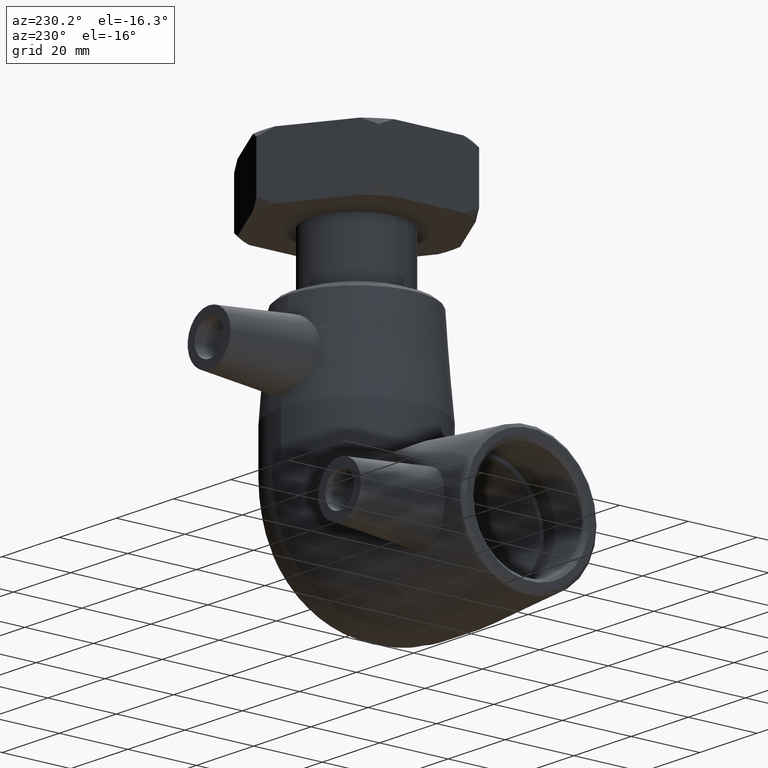
[diagram: clean part render]
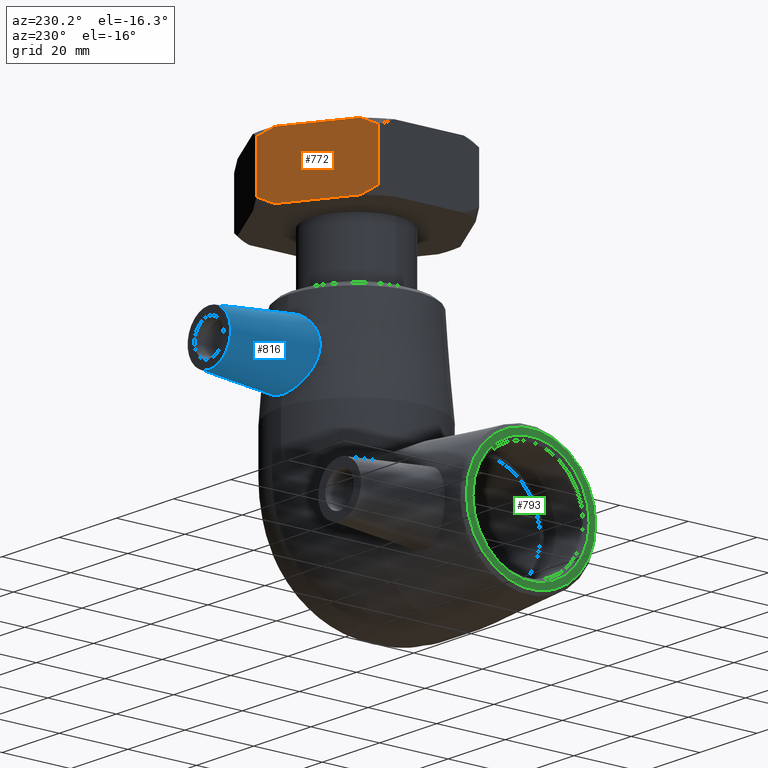
[diagram: same view with three faces highlighted in distinct colors, each labeled with its STEP entity id]
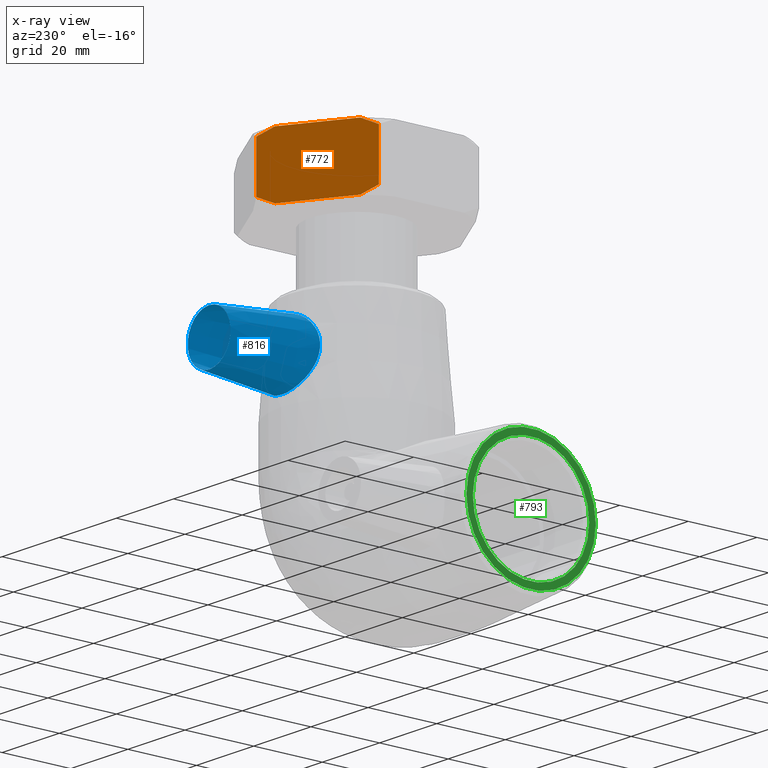
[diagram: x-ray of the same camera — body ghosted, the three highlighted faces saturated]
A machine part, auxiliary view with three faces highlighted in distinct colors.
The next image is the same camera in x-ray (body ghosted, the three faces saturated) — at least one of them is partly hidden behind the body in this view.
Their STEP definitions:

[orange] entity #772 — the highlighted planar face has unit normal (-0.5, 0.866, 0).
#27=LINE('',#1259,#45);
#29=LINE('',#1276,#47);
#30=LINE('',#1282,#48);
#31=LINE('',#1290,#49);
#45=VECTOR('',#972,14.1048);
#47=VECTOR('',#976,14.1048);
#48=VECTOR('',#977,20.3335409567542);
#49=VECTOR('',#978,20.3335409567542);
#67=(
BOUNDED_CURVE()
B_SPLINE_CURVE(2,(#1272,#1273,#1274),.UNSPECIFIED.,.F.,.F.)
B_SPLINE_CURVE_WITH_KNOTS((3,3),(0.,0.48503105520613),.UNSPECIFIED.)
CURVE()
GEOMETRIC_REPRESENTATION_ITEM()
RATIONAL_B_SPLINE_CURVE((1.,1.00310458904752,1.))
REPRESENTATION_ITEM('')
);
#68=(
BOUNDED_CURVE()
B_SPLINE_CURVE(2,(#1278,#1279,#1280),.UNSPECIFIED.,.F.,.F.)
B_SPLINE_CURVE_WITH_KNOTS((3,3),(0.,0.485031055206132),.UNSPECIFIED.)
CURVE()
GEOMETRIC_REPRESENTATION_ITEM()
RATIONAL_B_SPLINE_CURVE((1.,1.00310458904713,1.))
REPRESENTATION_ITEM('')
);
#69=(
BOUNDED_CURVE()
B_SPLINE_CURVE(2,(#1283,#1284,#1285),.UNSPECIFIED.,.F.,.F.)
B_SPLINE_CURVE_WITH_KNOTS((3,3),(0.,0.485031055206131),.UNSPECIFIED.)
CURVE()
GEOMETRIC_REPRESENTATION_ITEM()
RATIONAL_B_SPLINE_CURVE((1.,1.00310458904711,1.))
REPRESENTATION_ITEM('')
);
#70=(
BOUNDED_CURVE()
B_SPLINE_CURVE(2,(#1287,#1288,#1289),.UNSPECIFIED.,.F.,.F.)
B_SPLINE_CURVE_WITH_KNOTS((3,3),(0.,0.48503105520613),.UNSPECIFIED.)
CURVE()
GEOMETRIC_REPRESENTATION_ITEM()
RATIONAL_B_SPLINE_CURVE((1.,1.0031045890475,1.))
REPRESENTATION_ITEM('')
);
#98=PLANE('',#840);
#165=FACE_OUTER_BOUND('',#229,.T.);
#229=EDGE_LOOP('',(#580,#581,#582,#583,#584,#585,#586,#587));
#394=VERTEX_POINT('',#1254);
#395=VERTEX_POINT('',#1258);
#398=VERTEX_POINT('',#1270);
#399=VERTEX_POINT('',#1271);
#400=VERTEX_POINT('',#1275);
#401=VERTEX_POINT('',#1277);
#402=VERTEX_POINT('',#1281);
#403=VERTEX_POINT('',#1286);
#474=EDGE_CURVE('',#395,#394,#27,.T.);
#478=EDGE_CURVE('',#398,#399,#67,.T.);
#479=EDGE_CURVE('',#400,#398,#29,.T.);
#480=EDGE_CURVE('',#401,#400,#68,.T.);
#481=EDGE_CURVE('',#402,#401,#30,.T.);
#482=EDGE_CURVE('',#395,#402,#69,.T.);
#483=EDGE_CURVE('',#403,#394,#70,.T.);
#484=EDGE_CURVE('',#399,#403,#31,.T.);
#580=ORIENTED_EDGE('',*,*,#478,.F.);
#581=ORIENTED_EDGE('',*,*,#479,.F.);
#582=ORIENTED_EDGE('',*,*,#480,.F.);
#583=ORIENTED_EDGE('',*,*,#481,.F.);
#584=ORIENTED_EDGE('',*,*,#482,.F.);
#585=ORIENTED_EDGE('',*,*,#474,.T.);
#586=ORIENTED_EDGE('',*,*,#483,.F.);
#587=ORIENTED_EDGE('',*,*,#484,.F.);
#772=ADVANCED_FACE('',(#165),#98,.T.);
#840=AXIS2_PLACEMENT_3D('',#1269,#974,#975);
#972=DIRECTION('',(2.548052843402E-16,0.,1.));
#974=DIRECTION('center_axis',(-0.500000000000001,0.866025403784438,1.274026421701E-16));
#975=DIRECTION('ref_axis',(0.866025403784438,0.500000000000001,0.));
#976=DIRECTION('',(2.548052843402E-16,0.,1.));
#977=DIRECTION('',(0.866025403784438,0.500000000000001,-2.2066784925713E-16));
#978=DIRECTION('',(-0.866025403784438,-0.500000000000001,2.2066784925713E-16));
#1254=CARTESIAN_POINT('',(-25.3000661461586,14.607,95.0524));
#1258=CARTESIAN_POINT('',(-25.3000661461586,14.607,80.9476000000001));
#1259=CARTESIAN_POINT('',(-25.3000661461586,14.607,88.));
#1269=CARTESIAN_POINT('Origin',(-25.3000661461586,14.607,97.));
#1270=CARTESIAN_POINT('',(-5.08156479857765E-15,29.214,95.0524));
#1271=CARTESIAN_POINT('',(-3.84535156435905,26.9938852391886,97.));
#1272=CARTESIAN_POINT('Ctrl Pts',(4.02543838348013E-14,29.214,95.0524));
#1273=CARTESIAN_POINT('Ctrl Pts',(-1.98897494708227,28.0656647788906,96.2007352211094));
#1274=CARTESIAN_POINT('Ctrl Pts',(-3.84535156435905,26.9938852391886,97.));
#1275=CARTESIAN_POINT('',(-9.72140886309108E-15,29.214,80.9476));
#1276=CARTESIAN_POINT('',(8.88178419700125E-15,29.214,88.));
#1277=CARTESIAN_POINT('',(-3.84535156435905,26.9938852391886,79.));
#1278=CARTESIAN_POINT('Ctrl Pts',(-3.84535156435907,26.9938852391885,79.));
#1279=CARTESIAN_POINT('Ctrl Pts',(-1.98897494708229,28.0656647788906,79.7992647788907));
#1280=CARTESIAN_POINT('Ctrl Pts',(2.25155800040397E-14,29.214,80.9476000000001));
#1281=CARTESIAN_POINT('',(-21.4547145817996,16.8271147608114,79.));
#1282=CARTESIAN_POINT('',(-24.0874996096189,15.3070756162815,79.));
#1283=CARTESIAN_POINT('Ctrl Pts',(-25.3000661461586,14.607,80.9476000000001));
#1284=CARTESIAN_POINT('Ctrl Pts',(-23.3110911990763,15.7553352211093,79.7992647788907));
#1285=CARTESIAN_POINT('Ctrl Pts',(-21.4547145817995,16.8271147608114,79.));
#1286=CARTESIAN_POINT('',(-21.4547145817995,16.8271147608114,97.));
#1287=CARTESIAN_POINT('Ctrl Pts',(-21.4547145817995,16.8271147608114,97.));
#1288=CARTESIAN_POINT('Ctrl Pts',(-23.3110911990764,15.7553352211093,96.2007352211094));
#1289=CARTESIAN_POINT('Ctrl Pts',(-25.3000661461586,14.6069999999999,95.0524));
#1290=CARTESIAN_POINT('',(-29.9302996096189,11.9337334634603,97.));

[blue] entity #816 — the highlighted conical surface has half-angle 5 deg.
#18=B_SPLINE_CURVE_WITH_KNOTS('',3,(#1435,#1436,#1437,#1438,#1439,#1440,
#1441,#1442,#1443,#1444,#1445,#1446,#1447,#1448,#1449,#1450,#1451,#1452,
#1453,#1454,#1455,#1456,#1457,#1458,#1459,#1460,#1461,#1462,#1463,#1464,
#1465,#1466,#1467,#1468),.UNSPECIFIED.,.T.,.F.,(4,2,2,2,2,2,2,2,2,2,2,2,
2,2,2,2,4),(0.,0.352700193411278,0.705400386822555,1.06065997794798,1.4159195690734,
1.77117916019882,2.12643875132425,2.47913894473552,2.8318391381468,3.21426147151368,
3.59668380488056,3.96833233978789,4.33998087469521,4.71162940960254,5.08327794450986,
5.46570027787674,5.84812261124363),.UNSPECIFIED.);
#149=FACE_BOUND('',#303,.T.);
#209=FACE_OUTER_BOUND('',#302,.T.);
#302=EDGE_LOOP('',(#722));
#303=EDGE_LOOP('',(#723));
#368=CIRCLE('',#927,7.5);
#430=VERTEX_POINT('',#1434);
#446=VERTEX_POINT('',#1543);
#526=EDGE_CURVE('',#430,#430,#18,.T.);
#543=EDGE_CURVE('',#446,#446,#368,.T.);
#722=ORIENTED_EDGE('',*,*,#543,.T.);
#723=ORIENTED_EDGE('',*,*,#526,.F.);
#763=CONICAL_SURFACE('',#926,7.5,5.);
#816=ADVANCED_FACE('',(#209,#149),#763,.T.);
#926=AXIS2_PLACEMENT_3D('',#1542,#1154,#1155);
#927=AXIS2_PLACEMENT_3D('',#1544,#1156,#1157);
#1154=DIRECTION('center_axis',(0.,-1.,0.));
#1155=DIRECTION('ref_axis',(6.12323399573676E-17,0.,-1.));
#1156=DIRECTION('center_axis',(0.,-1.,0.));
#1157=DIRECTION('ref_axis',(6.12323399573676E-17,0.,-1.));
#1434=CARTESIAN_POINT('',(9.62136636545365,18.6527359345863,46.0602682614864));
#1435=CARTESIAN_POINT('Ctrl Pts',(9.62136636545365,18.6527359345863,46.0602682614863));
#1436=CARTESIAN_POINT('Ctrl Pts',(9.57864474688505,18.5699124519759,47.2322361625234));
#1437=CARTESIAN_POINT('Ctrl Pts',(9.29477438840324,18.6113538782614,48.4680337026871));
#1438=CARTESIAN_POINT('Ctrl Pts',(8.26038237665402,18.8985129488541,50.7113065030737));
#1439=CARTESIAN_POINT('Ctrl Pts',(7.51072157983028,19.1349894938284,51.7203517807895));
#1440=CARTESIAN_POINT('Ctrl Pts',(5.82233956886021,19.5832493329027,53.3069823604728));
#1441=CARTESIAN_POINT('Ctrl Pts',(4.76196036847415,19.8268123115242,53.9955728954431));
#1442=CARTESIAN_POINT('Ctrl Pts',(2.44335638516367,20.1704598428399,54.9119048959261));
#1443=CARTESIAN_POINT('Ctrl Pts',(1.18419863708474,20.266058430284,55.1389621646109));
#1444=CARTESIAN_POINT('Ctrl Pts',(-1.18419863708475,20.266058430284,55.1389621646109));
#1445=CARTESIAN_POINT('Ctrl Pts',(-2.44335638516368,20.1704598428399,54.9119048959261));
#1446=CARTESIAN_POINT('Ctrl Pts',(-4.76196036847416,19.8268123115242,53.9955728954431));
#1447=CARTESIAN_POINT('Ctrl Pts',(-5.82233956886021,19.5832493329027,53.3069823604728));
#1448=CARTESIAN_POINT('Ctrl Pts',(-7.51072157983028,19.1349894938284,51.7203517807895));
#1449=CARTESIAN_POINT('Ctrl Pts',(-8.26038237665403,18.8985129488541,50.7113065030737));
#1450=CARTESIAN_POINT('Ctrl Pts',(-9.29477438840325,18.6113538782614,48.4680337026871));
#1451=CARTESIAN_POINT('Ctrl Pts',(-9.57864474688506,18.5699124519759,47.2322361625234));
#1452=CARTESIAN_POINT('Ctrl Pts',(-9.66768814628455,18.7425389743044,44.7895383108989));
#1453=CARTESIAN_POINT('Ctrl Pts',(-9.43829136894649,18.9862188514755,43.4602629554652));
#1454=CARTESIAN_POINT('Ctrl Pts',(-8.45864045551373,19.651715607722,41.04422898226));
#1455=CARTESIAN_POINT('Ctrl Pts',(-7.70910972441214,20.0639278337078,39.9545419235782));
#1456=CARTESIAN_POINT('Ctrl Pts',(-5.9973309042789,20.7794201420516,38.258689345906));
#1457=CARTESIAN_POINT('Ctrl Pts',(-4.92433911740575,21.134551763808,37.5252883473859));
#1458=CARTESIAN_POINT('Ctrl Pts',(-2.54579354816424,21.6294602695051,36.5414476064506));
#1459=CARTESIAN_POINT('Ctrl Pts',(-1.23882844969108,21.7647203034417,36.2921537597489));
#1460=CARTESIAN_POINT('Ctrl Pts',(1.23882844969108,21.7647203034417,36.2921537597489));
#1461=CARTESIAN_POINT('Ctrl Pts',(2.54579354816424,21.6294602695051,36.5414476064506));
#1462=CARTESIAN_POINT('Ctrl Pts',(4.92433911740575,21.134551763808,37.5252883473859));
#1463=CARTESIAN_POINT('Ctrl Pts',(5.99733090427889,20.7794201420516,38.258689345906));
#1464=CARTESIAN_POINT('Ctrl Pts',(7.70910972441213,20.0639278337078,39.9545419235782));
#1465=CARTESIAN_POINT('Ctrl Pts',(8.45864045551372,19.651715607722,41.04422898226));
#1466=CARTESIAN_POINT('Ctrl Pts',(9.43829136894648,18.9862188514755,43.4602629554652));
#1467=CARTESIAN_POINT('Ctrl Pts',(9.66768814628454,18.7425389743044,44.7895383108988));
#1468=CARTESIAN_POINT('Ctrl Pts',(9.62136636545365,18.6527359345863,46.0602682614863));
#1542=CARTESIAN_POINT('Origin',(-2.79525631905383E-15,43.,45.65));
#1543=CARTESIAN_POINT('',(-2.33601376937358E-15,43.,53.15));
#1544=CARTESIAN_POINT('Origin',(-2.79525631905383E-15,43.,45.65));

[green] entity #793 — the highlighted planar face has unit normal (-1, 0, 0).
#104=PLANE('',#881);
#126=FACE_BOUND('',#257,.T.);
#186=FACE_OUTER_BOUND('',#256,.T.);
#256=EDGE_LOOP('',(#674));
#257=EDGE_LOOP('',(#675));
#345=CIRCLE('',#880,16.96);
#346=CIRCLE('',#882,18.84);
#421=VERTEX_POINT('',#1376);
#422=VERTEX_POINT('',#1379);
#517=EDGE_CURVE('',#421,#421,#345,.T.);
#518=EDGE_CURVE('',#422,#422,#346,.T.);
#674=ORIENTED_EDGE('',*,*,#518,.F.);
#675=ORIENTED_EDGE('',*,*,#517,.F.);
#793=ADVANCED_FACE('',(#186,#126),#104,.T.);
#880=AXIS2_PLACEMENT_3D('',#1377,#1062,#1063);
#881=AXIS2_PLACEMENT_3D('',#1378,#1064,#1065);
#882=AXIS2_PLACEMENT_3D('',#1380,#1066,#1067);
#1062=DIRECTION('center_axis',(-1.,2.27504718160893E-18,0.));
#1063=DIRECTION('ref_axis',(-2.27504718160893E-18,-1.,0.));
#1064=DIRECTION('center_axis',(-1.,2.27504718160893E-18,0.));
#1065=DIRECTION('ref_axis',(0.,0.,1.));
#1066=DIRECTION('center_axis',(1.,-2.27504718160893E-18,0.));
#1067=DIRECTION('ref_axis',(-2.27504718160893E-18,-1.,0.));
#1376=CARTESIAN_POINT('',(-61.,16.96,-2.07700097135391E-15));
#1377=CARTESIAN_POINT('Origin',(-61.,0.,0.));
#1378=CARTESIAN_POINT('Origin',(-61.,19.8,0.));
#1379=CARTESIAN_POINT('',(-61.,18.84,2.30723456959361E-15));
#1380=CARTESIAN_POINT('Origin',(-61.,5.2963073470649E-33,0.));